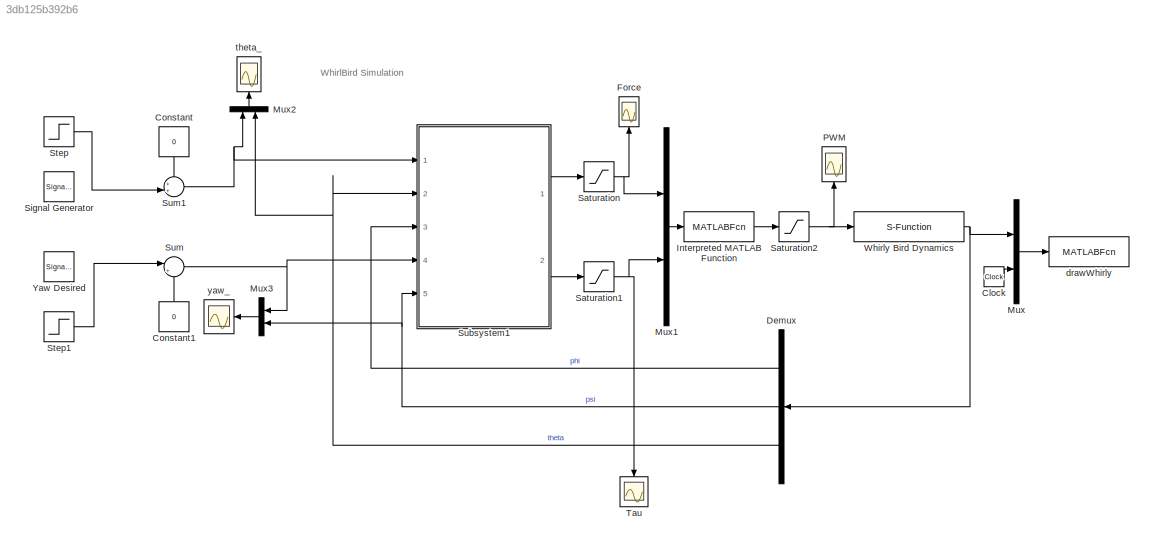
MODEL slx_3db125b392b6
KIND model
CONFIG AbsTol = auto
CONFIG EnableMultiTasking = on
CONFIG FixedStep = auto
CONFIG InitFcn = param
CONFIG MaxStep = auto
CONFIG MinStep = auto
CONFIG RelTol = 1e-3
CONFIG SampleTimeConstraint = Unconstrained
CONFIG Solver = ode45
CONFIG SolverName = ode45
CONFIG StartTime = 0.0
CONFIG StopTime = 500
BLOCK [Clock] Clock
BLOCK [Constant] Constant
  Value = 0
BLOCK [Constant] Constant1
  Value = 0
BLOCK [Demux] Demux
  DisplayOption = bar
  Outputs = 3
  Ports = [1, 3]
BLOCK [Scope] Force
  NumInputPorts = 1
  Ports = [1]
  ScopeSpecificationString = Simulink.scopes.TimeScopeBlockCfg('CurrentConfiguration', extmgr.ConfigurationSet(extmgr.Configuration('Core','General UI',true),extmgr.Configuration('Core','Source UI',true),extmgr.Configuration('Sources','WiredSimulink',true),extmgr.Configuration('Visuals','Time Domain',true,'SerializedDisplays',{struct('MinYLimReal','-1.57325','MaxYLimReal','14.15925','YLabelReal','','MinYLimMag','0.00000','Max...<+1412ch>
BLOCK [MATLABFcn] Interpreted MATLAB Function
  MATLABFcn = whirlyPWM(u,P)
  OutputDimensions = 2
  Ports = [1, 1]
BLOCK [Mux] Mux
  DisplayOption = bar
  Inputs = 2
  Ports = [2, 1]
BLOCK [Mux] Mux1
  DisplayOption = bar
  Inputs = 2
  Ports = [2, 1]
BLOCK [Mux] Mux2
  DisplayOption = bar
  Inputs = 2
  Ports = [2, 1]
BLOCK [Mux] Mux3
  DisplayOption = bar
  Inputs = 2
  Ports = [2, 1]
BLOCK [Scope] PWM
  NumInputPorts = 1
  Ports = [1]
  ScopeSpecificationString = Simulink.scopes.TimeScopeBlockCfg('CurrentConfiguration', extmgr.ConfigurationSet(extmgr.Configuration('Core','General UI',true),extmgr.Configuration('Core','Source UI',true),extmgr.Configuration('Sources','WiredSimulink',true,'DataLoggingVariableName','ScopeData1'),extmgr.Configuration('Visuals','Time Domain',true,'SerializedDisplays',{struct('MinYLimReal','0.23617','MaxYLimReal','0.61821','YLabe...<+1430ch>
BLOCK [Saturate] Saturation
  InputPortMap = u0
  LowerLimit = 0
  Ports = [1, 1]
  UpperLimit = P.forcemax
BLOCK [Saturate] Saturation1
  InputPortMap = u0
  LowerLimit = -P.taumax
  Ports = [1, 1]
  UpperLimit = P.taumax
BLOCK [Saturate] Saturation2
  InputPortMap = u0
  LowerLimit = 0
  Ports = [1, 1]
  UpperLimit = .6
BLOCK [SignalGenerator] Signal Generator
  Amplitude = .2618*2
  Frequency = .02
  Ports = [0, 1]
  WaveForm = square
BLOCK [Step] Step
  After = 0
  SampleTime = 0
  Time = 30
BLOCK [Step] Step1
  After = .3
  SampleTime = 0
  Time = 30
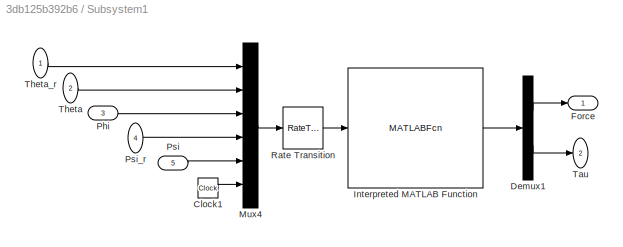
BLOCK [SubSystem] Subsystem1
  Ports = [5, 2]
  RequestExecContextInheritance = off
  Variant = off
BLOCK [Clock] Subsystem1/Clock1
BLOCK [Demux] Subsystem1/Demux1
  DisplayOption = bar
  Outputs = 2
  Ports = [1, 2]
BLOCK [Outport] Subsystem1/Force
  IconDisplay = Port number
BLOCK [MATLABFcn] Subsystem1/Interpreted MATLAB Function
  MATLABFcn = whirly_ctrl_state(u,P)
  Output1D = off
  OutputDimensions = 2
  Ports = [1, 1]
BLOCK [Mux] Subsystem1/Mux4
  DisplayOption = bar
  Inputs = 6
  Ports = [6, 1]
BLOCK [Inport] Subsystem1/Phi
  IconDisplay = Port number
  Port = 3
BLOCK [Inport] Subsystem1/Psi
  IconDisplay = Port number
  Port = 5
BLOCK [Inport] Subsystem1/Psi_r
  IconDisplay = Port number
  Port = 4
BLOCK [RateTransition] Subsystem1/Rate Transition
  OutPortSampleTime = P.Ts
BLOCK [Outport] Subsystem1/Tau
  IconDisplay = Port number
  Port = 2
BLOCK [Inport] Subsystem1/Theta
  IconDisplay = Port number
  Port = 2
BLOCK [Inport] Subsystem1/Theta_r
  IconDisplay = Port number
BLOCK [Sum] Sum
  IconShape = round
  InputSameDT = off
  Inputs = |++
  OutDataTypeStr = Inherit: Inherit via internal rule
  Ports = [2, 1]
  SaturateOnIntegerOverflow = off
BLOCK [Sum] Sum1
  IconShape = round
  InputSameDT = off
  Inputs = ++|
  OutDataTypeStr = Inherit: Inherit via internal rule
  Ports = [2, 1]
  SaturateOnIntegerOverflow = off
BLOCK [Scope] Tau
  NumInputPorts = 1
  Ports = [1]
  ScopeSpecificationString = Simulink.scopes.TimeScopeBlockCfg('CurrentConfiguration', extmgr.ConfigurationSet(extmgr.Configuration('Core','General UI',true),extmgr.Configuration('Core','Source UI',true),extmgr.Configuration('Sources','WiredSimulink',true,'DataLoggingVariableName','ScopeData1'),extmgr.Configuration('Visuals','Time Domain',true,'SerializedDisplays',{struct('MinYLimReal','-2.80038','MaxYLimReal','2.80038','YLab...<+1443ch>
BLOCK [S-Function] Whirly Bird Dynamics
  EnableBusSupport = off
  FunctionName = Whirly_dynamics
  Parameters = P
  Ports = [1, 1]
  SFcnIsStateOwnerBlock = off
  SFunctionDeploymentMode = off
BLOCK [SignalGenerator] Yaw Desired
  Amplitude = .2618*2
  Frequency = .02
  Ports = [0, 1]
  WaveForm = square
BLOCK [MATLABFcn] drawWhirly
  MATLABFcn = drawWhirly(u)
  OutputDimensions = 0
  Ports = [1]
  SampleTime = 0.1
BLOCK [Scope] theta_
  NumInputPorts = 1
  Ports = [1]
  ScopeSpecificationString = Simulink.scopes.TimeScopeBlockCfg('CurrentConfiguration', extmgr.ConfigurationSet(extmgr.Configuration('Core','General UI',true),extmgr.Configuration('Core','Source UI',true),extmgr.Configuration('Sources','WiredSimulink',true,'DataLoggingVariableName','ScopeData1'),extmgr.Configuration('Visuals','Time Domain',true,'SerializedDisplays',{struct('MinYLimReal','-1.91019','MaxYLimReal','1.92767','YLab...<+1451ch>
BLOCK [Scope] yaw_
  NumInputPorts = 1
  Ports = [1]
  ScopeSpecificationString = Simulink.scopes.TimeScopeBlockCfg('CurrentConfiguration', extmgr.ConfigurationSet(extmgr.Configuration('Core','General UI',true),extmgr.Configuration('Core','Source UI',true),extmgr.Configuration('Sources','WiredSimulink',true,'DataLoggingVariableName','ScopeData2'),extmgr.Configuration('Visuals','Time Domain',true,'SerializedDisplays',{struct('MinYLimReal','-16.93961','MaxYLimReal','152.45647','Y...<+1457ch>
ANNOTATION (root): WhirlBird Simulation
LINE Clock:1 -> Mux:2
LINE Constant1:1 -> Sum:2
LINE Constant:1 -> Sum1:1
LINE Demux:1 -> Subsystem1:3
NET Demux:2 -> Mux3:2, Subsystem1:5
NET Demux:3 -> Mux2:2, Subsystem1:2
LINE Interpreted MATLAB Function:1 -> Saturation2:1
LINE Mux1:1 -> Interpreted MATLAB Function:1
LINE Mux2:1 -> theta_:1
LINE Mux3:1 -> yaw_:1
LINE Mux:1 -> drawWhirly:1
NET Saturation1:1 -> Mux1:2, Tau:1
NET Saturation2:1 -> PWM:1, Whirly Bird Dynamics:1
NET Saturation:1 -> Force:1, Mux1:1
LINE Step1:1 -> Sum:1
LINE Step:1 -> Sum1:2
LINE Subsystem1/Clock1:1 -> Subsystem1/Mux4:6
LINE Subsystem1/Demux1:1 -> Subsystem1/Force:1
LINE Subsystem1/Demux1:2 -> Subsystem1/Tau:1
LINE Subsystem1/Interpreted MATLAB Function:1 -> Subsystem1/Demux1:1
LINE Subsystem1/Mux4:1 -> Subsystem1/Rate Transition:1
LINE Subsystem1/Phi:1 -> Subsystem1/Mux4:3
LINE Subsystem1/Psi:1 -> Subsystem1/Mux4:5
LINE Subsystem1/Psi_r:1 -> Subsystem1/Mux4:4
LINE Subsystem1/Rate Transition:1 -> Subsystem1/Interpreted MATLAB Function:1
LINE Subsystem1/Theta:1 -> Subsystem1/Mux4:2
LINE Subsystem1/Theta_r:1 -> Subsystem1/Mux4:1
LINE Subsystem1:1 -> Saturation:1
LINE Subsystem1:2 -> Saturation1:1
NET Sum1:1 -> Mux2:1, Subsystem1:1
NET Sum:1 -> Mux3:1, Subsystem1:4
NET Whirly Bird Dynamics:1 -> Demux:1, Mux:1
note: NET lines group one-source signal fan-out (src -> all destinations, sorted); 1:1 wires keep LINE
